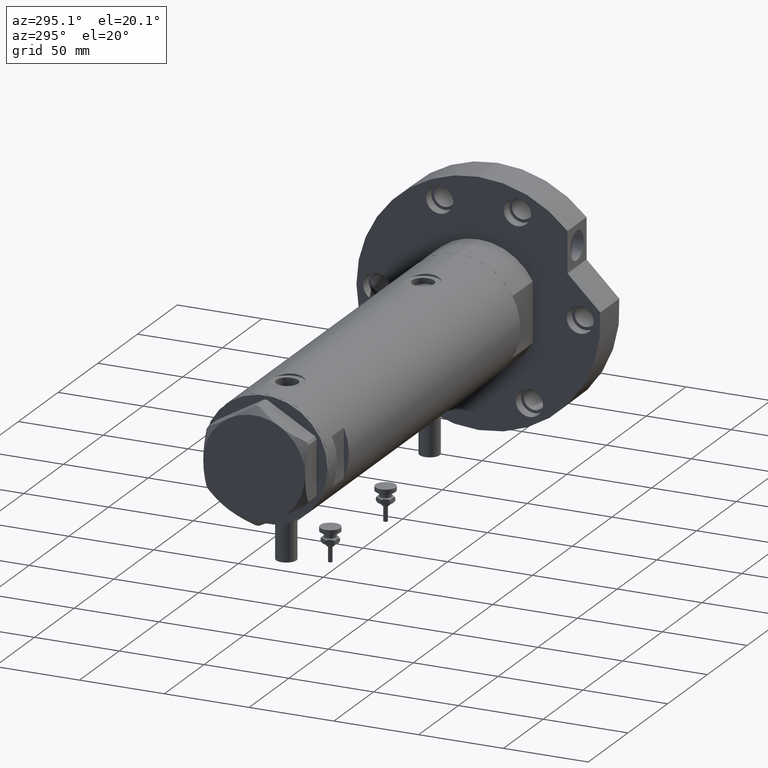
[diagram: clean part render]
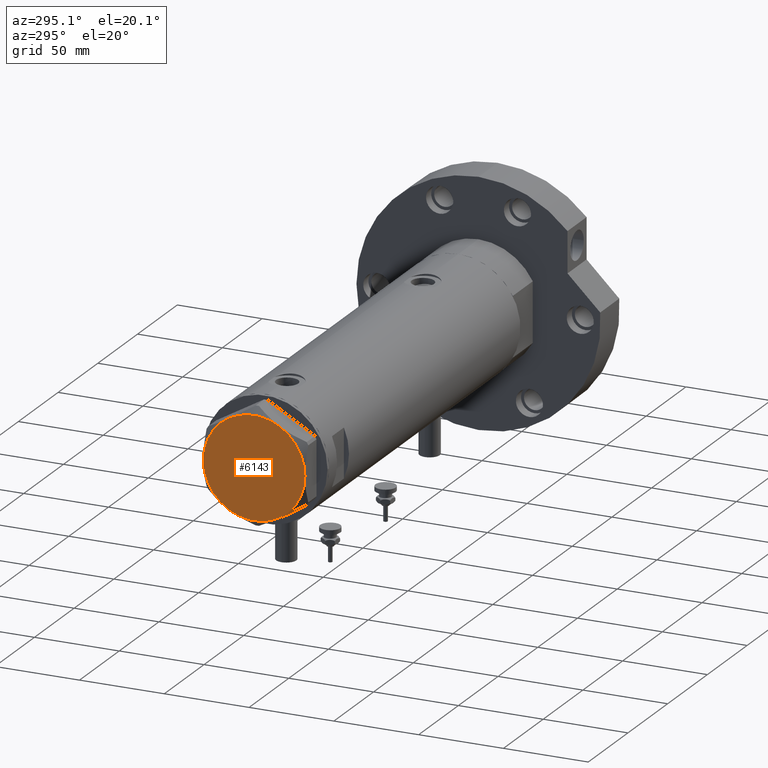
[diagram: same view with one face highlighted and labeled with its STEP entity id]
A machine part, auxiliary view. The second image highlights one B-rep face of the part: STEP entity #6143.
In plain terms, the highlighted planar face has unit normal (-1, -0, 0).
Its self-contained STEP definition (entity closure, byte-faithful):
#67 = ORIENTED_EDGE ( 'NONE', *, *, #3594, .T. ) ;
#244 = DIRECTION ( 'NONE',  ( 1.000000000000000000, 0.000000000000000000, 0.000000000000000000 ) ) ;
#284 = VERTEX_POINT ( 'NONE', #2373 ) ;
#499 = DIRECTION ( 'NONE',  ( 0.000000000000000000, 0.000000000000000000, 1.000000000000000000 ) ) ;
#595 = AXIS2_PLACEMENT_3D ( 'NONE', #1397, #2512, #1277 ) ;
#727 = ORIENTED_EDGE ( 'NONE', *, *, #5025, .T. ) ;
#1277 = DIRECTION ( 'NONE',  ( 1.000000000000000000, 0.000000000000000000, 0.000000000000000000 ) ) ;
#1397 = CARTESIAN_POINT ( 'NONE',  ( 0.000000000000000000, 0.000000000000000000, 14.50000000000000000 ) ) ;
#1398 = ORIENTED_EDGE ( 'NONE', *, *, #5577, .T. ) ;
#1463 = AXIS2_PLACEMENT_3D ( 'NONE', #2351, #1778, #4328 ) ;
#1493 = CIRCLE ( 'NONE', #3083, 30.00000000000000000 ) ;
#1521 = PLANE ( 'NONE',  #2480 ) ;
#1778 = DIRECTION ( 'NONE',  ( 0.000000000000000000, 0.000000000000000000, 1.000000000000000000 ) ) ;
#1930 = EDGE_CURVE ( 'NONE', #4453, #6746, #2450, .T. ) ;
#2281 = CARTESIAN_POINT ( 'NONE',  ( 0.000000000000000000, 0.000000000000000000, 14.50000000000000000 ) ) ;
#2351 = CARTESIAN_POINT ( 'NONE',  ( 0.000000000000000000, 0.000000000000000000, 14.50000000000000000 ) ) ;
#2373 = CARTESIAN_POINT ( 'NONE',  ( 14.99999999999998757, -25.98076211353316722, 14.50000000000000000 ) ) ;
#2450 = CIRCLE ( 'NONE', #1463, 30.00000000000000000 ) ;
#2480 = AXIS2_PLACEMENT_3D ( 'NONE', #4375, #4925, #2749 ) ;
#2512 = DIRECTION ( 'NONE',  ( 0.000000000000000000, 0.000000000000000000, 1.000000000000000000 ) ) ;
#2749 = DIRECTION ( 'NONE',  ( 1.000000000000000000, 0.000000000000000000, -0.000000000000000000 ) ) ;
#2750 = CARTESIAN_POINT ( 'NONE',  ( -14.99999999999999645, 25.98076211353316367, 14.50000000000000000 ) ) ;
#2764 = DIRECTION ( 'NONE',  ( 1.000000000000000000, 0.000000000000000000, 0.000000000000000000 ) ) ;
#2801 = EDGE_CURVE ( 'NONE', #6746, #284, #7581, .T. ) ;
#2821 = AXIS2_PLACEMENT_3D ( 'NONE', #3890, #3821, #244 ) ;
#3083 = AXIS2_PLACEMENT_3D ( 'NONE', #3282, #5599, #7267 ) ;
#3091 = CARTESIAN_POINT ( 'NONE',  ( 14.99999999999999467, 25.98076211353316367, 14.50000000000000000 ) ) ;
#3282 = CARTESIAN_POINT ( 'NONE',  ( 0.000000000000000000, 0.000000000000000000, 14.50000000000000000 ) ) ;
#3303 = VERTEX_POINT ( 'NONE', #4352 ) ;
#3304 = EDGE_CURVE ( 'NONE', #3303, #5252, #6719, .T. ) ;
#3331 = ORIENTED_EDGE ( 'NONE', *, *, #3304, .T. ) ;
#3357 = DIRECTION ( 'NONE',  ( 1.000000000000000000, 0.000000000000000000, 0.000000000000000000 ) ) ;
#3437 = AXIS2_PLACEMENT_3D ( 'NONE', #2281, #499, #3357 ) ;
#3594 = EDGE_CURVE ( 'NONE', #284, #3303, #5132, .T. ) ;
#3674 = VERTEX_POINT ( 'NONE', #2750 ) ;
#3821 = DIRECTION ( 'NONE',  ( 0.000000000000000000, 0.000000000000000000, 1.000000000000000000 ) ) ;
#3850 = FACE_OUTER_BOUND ( 'NONE', #6459, .T. ) ;
#3863 = ORIENTED_EDGE ( 'NONE', *, *, #2801, .T. ) ;
#3890 = CARTESIAN_POINT ( 'NONE',  ( 0.000000000000000000, 0.000000000000000000, 14.50000000000000000 ) ) ;
#4328 = DIRECTION ( 'NONE',  ( 1.000000000000000000, 0.000000000000000000, 0.000000000000000000 ) ) ;
#4352 = CARTESIAN_POINT ( 'NONE',  ( 30.00000000000000000, 9.013887592422954582E-15, 14.50000000000000000 ) ) ;
#4375 = CARTESIAN_POINT ( 'NONE',  ( 0.000000000000000000, 0.000000000000000000, 14.50000000000000000 ) ) ;
#4453 = VERTEX_POINT ( 'NONE', #5814 ) ;
#4469 = CARTESIAN_POINT ( 'NONE',  ( 0.000000000000000000, 0.000000000000000000, 14.50000000000000000 ) ) ;
#4925 = DIRECTION ( 'NONE',  ( 0.000000000000000000, 0.000000000000000000, 1.000000000000000000 ) ) ;
#5025 = EDGE_CURVE ( 'NONE', #3674, #4453, #1493, .T. ) ;
#5132 = CIRCLE ( 'NONE', #2821, 30.00000000000000000 ) ;
#5252 = VERTEX_POINT ( 'NONE', #3091 ) ;
#5577 = EDGE_CURVE ( 'NONE', #5252, #3674, #7104, .T. ) ;
#5599 = DIRECTION ( 'NONE',  ( 0.000000000000000000, 0.000000000000000000, 1.000000000000000000 ) ) ;
#5814 = CARTESIAN_POINT ( 'NONE',  ( -30.00000000000000000, 0.000000000000000000, 14.50000000000000000 ) ) ;
#5859 = ORIENTED_EDGE ( 'NONE', *, *, #1930, .T. ) ;
#6143 = ADVANCED_FACE ( 'NONE', ( #3850 ), #1521, .T. ) ;
#6459 = EDGE_LOOP ( 'NONE', ( #67, #3331, #1398, #727, #5859, #3863 ) ) ;
#6719 = CIRCLE ( 'NONE', #6776, 30.00000000000000000 ) ;
#6746 = VERTEX_POINT ( 'NONE', #7550 ) ;
#6776 = AXIS2_PLACEMENT_3D ( 'NONE', #4469, #7395, #2764 ) ;
#7104 = CIRCLE ( 'NONE', #3437, 30.00000000000000000 ) ;
#7267 = DIRECTION ( 'NONE',  ( 1.000000000000000000, 0.000000000000000000, 0.000000000000000000 ) ) ;
#7395 = DIRECTION ( 'NONE',  ( 0.000000000000000000, 0.000000000000000000, 1.000000000000000000 ) ) ;
#7550 = CARTESIAN_POINT ( 'NONE',  ( -14.99999999999999645, -25.98076211353316367, 14.50000000000000000 ) ) ;
#7581 = CIRCLE ( 'NONE', #595, 30.00000000000000000 ) ;